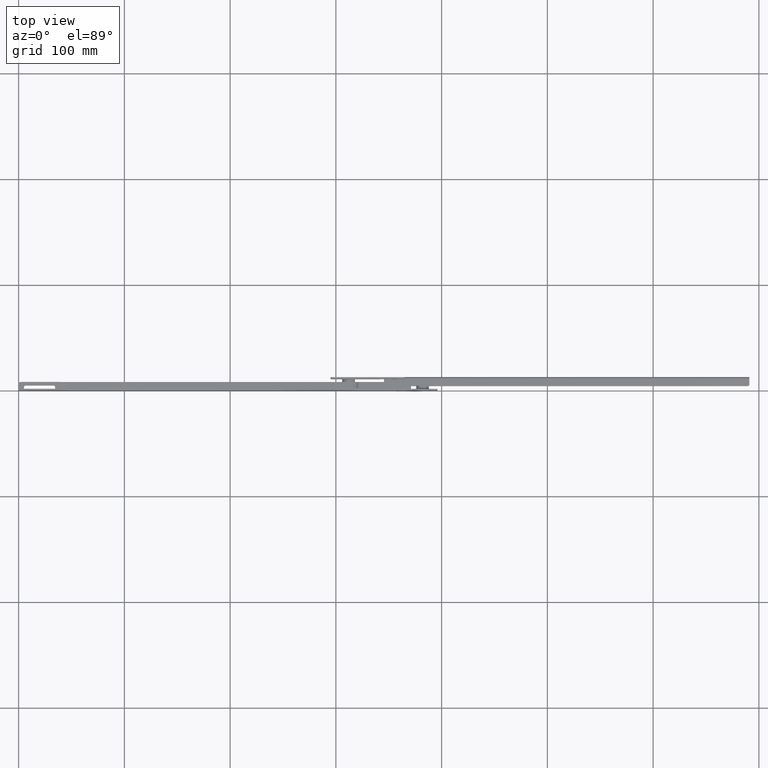
[diagram: clean part render]
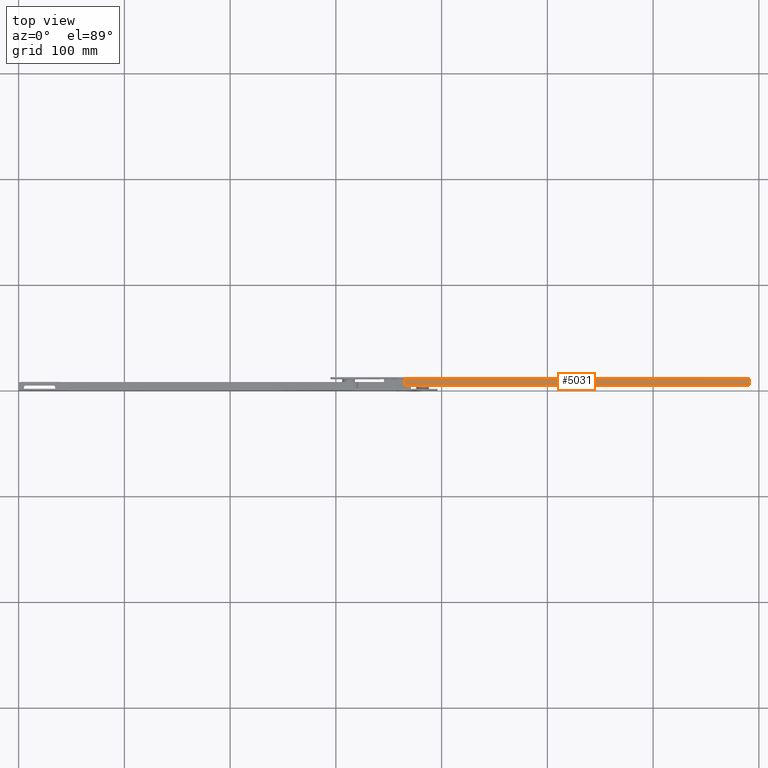
[diagram: same view with one face highlighted and labeled with its STEP entity id]
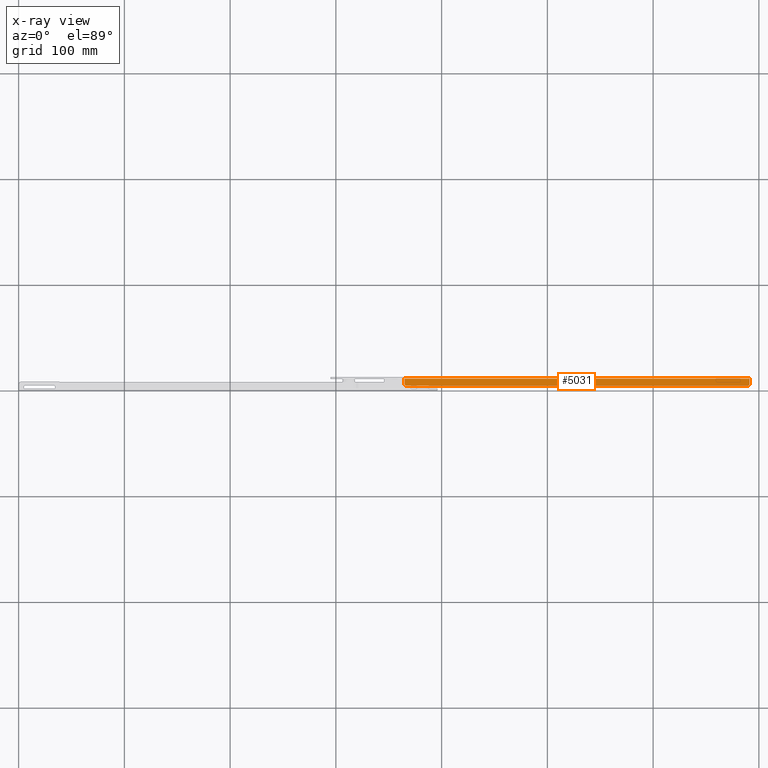
[diagram: x-ray of the same camera — body ghosted, the highlighted face saturated]
A machine part, top view. The second image highlights one B-rep face of the part: STEP entity #5031.
The next image is the same camera in x-ray: the body ghosted, the highlighted face saturated — about 0% of this face is hidden behind the body in this view.
In plain terms, the highlighted face is a freeform B-spline surface patch.
Its self-contained STEP definition (entity closure, byte-faithful):
#2654=CARTESIAN_POINT('',(175.0,5.999999999999770,27.500000000000000));
#2655=VERTEX_POINT('',#2654);
#2656=CARTESIAN_POINT('',(176.500000000000000,4.499999999999725,27.500000000000000));
#2657=VERTEX_POINT('',#2656);
#2658=CARTESIAN_POINT('',(175.0,5.999999999999770,27.500000000000000));
#2659=CARTESIAN_POINT('',(174.999999999999940,4.499999999999769,27.500000000000004));
#2660=CARTESIAN_POINT('',(176.500000000000000,4.499999999999770,27.500000000000000));
#2668=(BOUNDED_CURVE()B_SPLINE_CURVE(2,(#2658,#2659,#2660),.UNSPECIFIED.,.F.,.U.)CURVE()GEOMETRIC_REPRESENTATION_ITEM()QUASI_UNIFORM_CURVE()RATIONAL_B_SPLINE_CURVE((1.0,0.707106781186548,1.0))REPRESENTATION_ITEM(''));
#2669=EDGE_CURVE('',#2655,#2657,#2668,.T.);
#3704=CARTESIAN_POINT('',(175.0,10.999999999999799,27.500000000000000));
#3705=VERTEX_POINT('',#3704);
#3719=CARTESIAN_POINT('',(501.0,10.999999999999799,27.500000000000000));
#3720=VERTEX_POINT('',#3719);
#3721=CARTESIAN_POINT('',(501.0,10.999999999999799,27.500000000000000));
#3722=CARTESIAN_POINT('',(175.0,10.999999999999799,27.500000000000000));
#3723=QUASI_UNIFORM_CURVE('',1,(#3721,#3722),.UNSPECIFIED.,.F.,.U.);
#3724=EDGE_CURVE('',#3720,#3705,#3723,.T.);
#4200=CARTESIAN_POINT('',(501.0,5.999999999999780,27.500000000000000));
#4201=VERTEX_POINT('',#4200);
#4207=CARTESIAN_POINT('',(499.500000000000000,4.499999999999725,27.500000000000000));
#4208=VERTEX_POINT('',#4207);
#4209=CARTESIAN_POINT('',(499.500000000000000,4.499999999999770,27.500000000000000));
#4210=CARTESIAN_POINT('',(500.999999999999890,4.499999999999769,27.500000000000004));
#4211=CARTESIAN_POINT('',(501.0,5.999999999999770,27.500000000000000));
#4219=(BOUNDED_CURVE()B_SPLINE_CURVE(2,(#4209,#4210,#4211),.UNSPECIFIED.,.F.,.U.)CURVE()GEOMETRIC_REPRESENTATION_ITEM()QUASI_UNIFORM_CURVE()RATIONAL_B_SPLINE_CURVE((1.0,0.707106781186548,1.0))REPRESENTATION_ITEM(''));
#4220=EDGE_CURVE('',#4208,#4201,#4219,.T.);
#4514=CARTESIAN_POINT('',(499.500000000000000,4.499999999999725,27.500000000000000));
#4515=CARTESIAN_POINT('',(176.500000000000000,4.499999999999725,27.500000000000000));
#4516=QUASI_UNIFORM_CURVE('',1,(#4514,#4515),.UNSPECIFIED.,.F.,.U.);
#4517=EDGE_CURVE('',#4208,#2657,#4516,.T.);
#4998=CARTESIAN_POINT('',(501.0,5.999999999999780,27.500000000000000));
#4999=CARTESIAN_POINT('',(501.0,10.999999999999799,27.500000000000000));
#5000=QUASI_UNIFORM_CURVE('',1,(#4998,#4999),.UNSPECIFIED.,.F.,.U.);
#5001=EDGE_CURVE('',#4201,#3720,#5000,.T.);
#5014=CARTESIAN_POINT('',(158.716300631851310,4.175325012597982,27.500000000000000));
#5015=CARTESIAN_POINT('',(517.283708112150290,4.175325012597982,27.500000000000000));
#5016=CARTESIAN_POINT('',(158.716300631851310,11.324675161745130,27.500000000000000));
#5017=CARTESIAN_POINT('',(517.283708112150290,11.324675161745130,27.500000000000000));
#5018=B_SPLINE_SURFACE_WITH_KNOTS('',1,1,((#5014,#5016),(#5015,#5017)),.UNSPECIFIED.,.F.,.F.,.U.,(2,2),(2,2),(0.0,358.567407480298980),(0.0,7.149350149147146),.UNSPECIFIED.);
#5019=CARTESIAN_POINT('',(175.0,10.999999999999799,27.500000000000000));
#5020=CARTESIAN_POINT('',(175.0,5.999999999999770,27.500000000000000));
#5021=QUASI_UNIFORM_CURVE('',1,(#5019,#5020),.UNSPECIFIED.,.F.,.U.);
#5022=EDGE_CURVE('',#3705,#2655,#5021,.T.);
#5023=ORIENTED_EDGE('',*,*,#5022,.T.);
#5024=ORIENTED_EDGE('',*,*,#2669,.T.);
#5025=ORIENTED_EDGE('',*,*,#4517,.F.);
#5026=ORIENTED_EDGE('',*,*,#4220,.T.);
#5027=ORIENTED_EDGE('',*,*,#5001,.T.);
#5028=ORIENTED_EDGE('',*,*,#3724,.T.);
#5029=EDGE_LOOP('',(#5023,#5024,#5025,#5026,#5027,#5028));
#5030=FACE_OUTER_BOUND('',#5029,.T.);
#5031=ADVANCED_FACE('',(#5030),#5018,.T.);